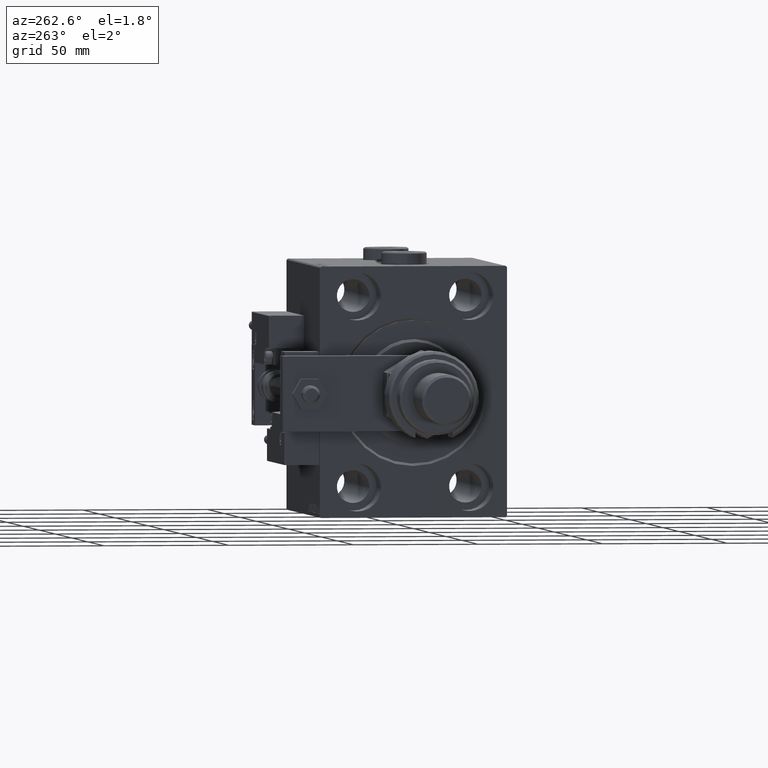
[diagram: clean part render]
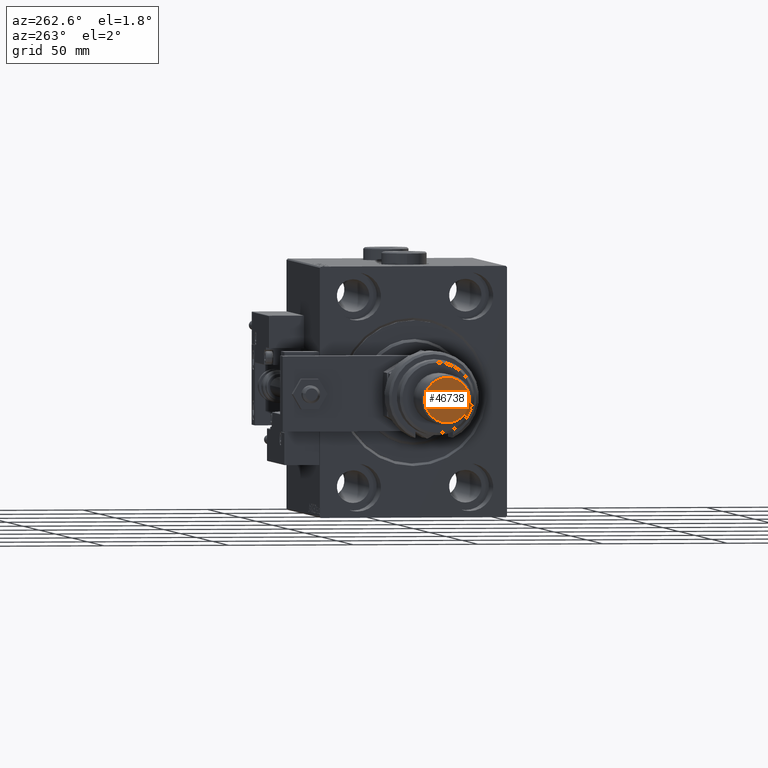
[diagram: same view with one face highlighted and labeled with its STEP entity id]
A machine part, auxiliary view. The second image highlights one B-rep face of the part: STEP entity #46738.
In plain terms, the highlighted planar face has unit normal (-1, 0, 0).
Its self-contained STEP definition (entity closure, byte-faithful):
#690 = CARTESIAN_POINT ( 'NONE',  ( -8.999999999999987566, 0.000000000000000000, 56.00000000000000711 ) ) ;
#1231 = PLANE ( 'NONE',  #21041 ) ;
#4123 = DIRECTION ( 'NONE',  ( 0.000000000000000000, 0.000000000000000000, 1.000000000000000000 ) ) ;
#11414 = ORIENTED_EDGE ( 'NONE', *, *, #36759, .T. ) ;
#11805 = AXIS2_PLACEMENT_3D ( 'NONE', #40285, #53216, #43611 ) ;
#14549 = VERTEX_POINT ( 'NONE', #42859 ) ;
#14628 = EDGE_LOOP ( 'NONE', ( #40477, #11414 ) ) ;
#21041 = AXIS2_PLACEMENT_3D ( 'NONE', #41924, #4123, #41661 ) ;
#24037 = VERTEX_POINT ( 'NONE', #690 ) ;
#26924 = CIRCLE ( 'NONE', #47211, 8.999999999999987566 ) ;
#31526 = DIRECTION ( 'NONE',  ( 1.000000000000000000, 0.000000000000000000, 0.000000000000000000 ) ) ;
#33964 = EDGE_CURVE ( 'NONE', #24037, #14549, #34712, .T. ) ;
#34175 = FACE_OUTER_BOUND ( 'NONE', #14628, .T. ) ;
#34712 = CIRCLE ( 'NONE', #11805, 8.999999999999987566 ) ;
#36759 = EDGE_CURVE ( 'NONE', #14549, #24037, #26924, .T. ) ;
#40285 = CARTESIAN_POINT ( 'NONE',  ( 0.000000000000000000, 0.000000000000000000, 56.00000000000000711 ) ) ;
#40477 = ORIENTED_EDGE ( 'NONE', *, *, #33964, .T. ) ;
#41661 = DIRECTION ( 'NONE',  ( 1.000000000000000000, 0.000000000000000000, -0.000000000000000000 ) ) ;
#41924 = CARTESIAN_POINT ( 'NONE',  ( 0.000000000000000000, 0.000000000000000000, 56.00000000000000711 ) ) ;
#42859 = CARTESIAN_POINT ( 'NONE',  ( 8.999999999999987566, 1.163414459189984894E-15, 56.00000000000000711 ) ) ;
#43611 = DIRECTION ( 'NONE',  ( 1.000000000000000000, 0.000000000000000000, 0.000000000000000000 ) ) ;
#46738 = ADVANCED_FACE ( 'NONE', ( #34175 ), #1231, .T. ) ;
#47211 = AXIS2_PLACEMENT_3D ( 'NONE', #47838, #52500, #31526 ) ;
#47838 = CARTESIAN_POINT ( 'NONE',  ( 0.000000000000000000, 0.000000000000000000, 56.00000000000000711 ) ) ;
#52500 = DIRECTION ( 'NONE',  ( 0.000000000000000000, 0.000000000000000000, 1.000000000000000000 ) ) ;
#53216 = DIRECTION ( 'NONE',  ( 0.000000000000000000, 0.000000000000000000, 1.000000000000000000 ) ) ;